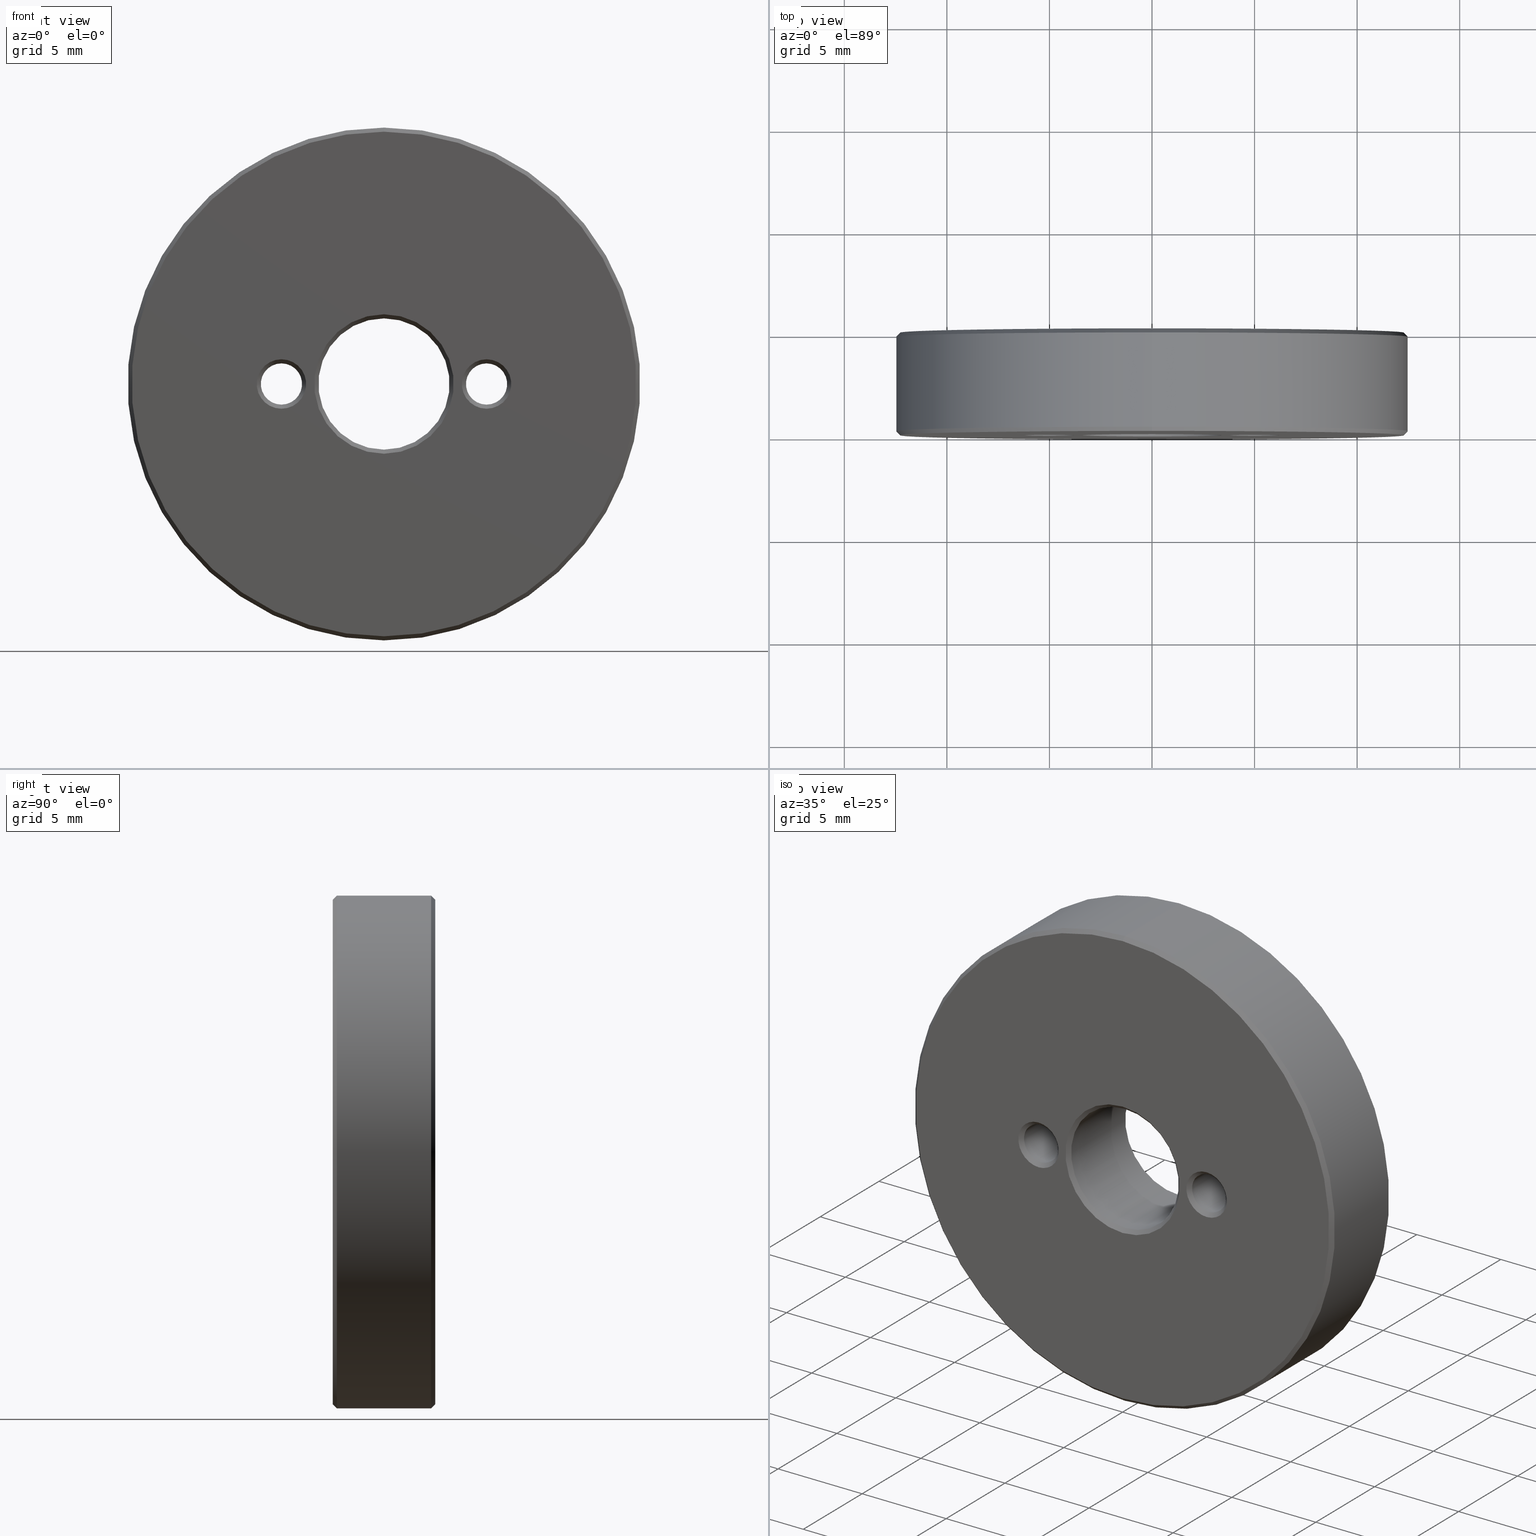
[diagram: canonical four-view strip — front | top / right | iso, engineering-drawing reading convention]
A machine part, canonical four-view strip (front | top / right | iso — engineering-drawing reading convention). The complete STEP part file that produces these views, byte-faithful:
ISO-10303-21;
HEADER;
FILE_DESCRIPTION (( 'STEP AP203' ),
    '1' );
FILE_NAME ('523803.STEP',
    '2022-12-15T01:53:30',
    ( '' ),
    ( '' ),
    'SwSTEP 2.0',
    'SolidWorks 2020',
    '' );
FILE_SCHEMA (( 'CONFIG_CONTROL_DESIGN' ));
ENDSEC;

DATA;
#1 = CARTESIAN_POINT ( 'NONE',  ( -5.000000000000000000, 5.000000000000000000, 0.000000000000000000 ) ) ;
#2 = APPROVAL_STATUS ( 'not_yet_approved' ) ;
#3 = CIRCLE ( 'NONE', #174, 12.50000000000000000 ) ;
#4 = EDGE_LOOP ( 'NONE', ( #134 ) ) ;
#5 = CC_DESIGN_DATE_AND_TIME_ASSIGNMENT ( #186, #96, ( #345 ) ) ;
#6 = AXIS2_PLACEMENT_3D ( 'NONE', #308, #360, #274 ) ;
#7 =( GEOMETRIC_REPRESENTATION_CONTEXT ( 3 ) GLOBAL_UNCERTAINTY_ASSIGNED_CONTEXT ( ( #270 ) ) GLOBAL_UNIT_ASSIGNED_CONTEXT ( ( #226, #144, #247 ) ) REPRESENTATION_CONTEXT ( 'NONE', 'WORKASPACE' ) );
#8 = EDGE_LOOP ( 'NONE', ( #231 ) ) ;
#9 = CYLINDRICAL_SURFACE ( 'NONE', #210, 3.200000000000000178 ) ;
#10 = EDGE_LOOP ( 'NONE', ( #301 ) ) ;
#11 = AXIS2_PLACEMENT_3D ( 'NONE', #185, #92, #363 ) ;
#12 = EDGE_CURVE ( 'NONE', #17, #17, #51, .T. ) ;
#13 = DIRECTION ( 'NONE',  ( 0.000000000000000000, 0.000000000000000000, 1.000000000000000000 ) ) ;
#14 = EDGE_LOOP ( 'NONE', ( #291 ) ) ;
#15 = CARTESIAN_POINT ( 'NONE',  ( -5.000000000000000000, 0.1999999999999979294, 0.000000000000000000 ) ) ;
#16 = ORIENTED_EDGE ( 'NONE', *, *, #378, .F. ) ;
#17 = VERTEX_POINT ( 'NONE', #239 ) ;
#18 = CC_DESIGN_PERSON_AND_ORGANIZATION_ASSIGNMENT ( #184, #242, ( #232 ) ) ;
#19 = CARTESIAN_POINT ( 'NONE',  ( 0.000000000000000000, 5.000000000000000000, 0.000000000000000000 ) ) ;
#20 = VERTEX_POINT ( 'NONE', #359 ) ;
#21 = CYLINDRICAL_SURFACE ( 'NONE', #142, 1.004999999999999893 ) ;
#22 = APPROVAL_STATUS ( 'not_yet_approved' ) ;
#23 = DIRECTION ( 'NONE',  ( -0.000000000000000000, -1.000000000000000000, -0.000000000000000000 ) ) ;
#24 = DIRECTION ( 'NONE',  ( 1.000000000000000000, 0.000000000000000000, 0.000000000000000000 ) ) ;
#25 = FACE_BOUND ( 'NONE', #8, .T. ) ;
#26 = DATE_AND_TIME ( #369, #36 ) ;
#27 = AXIS2_PLACEMENT_3D ( 'NONE', #112, #330, #272 ) ;
#28 = CARTESIAN_POINT ( 'NONE',  ( -5.000000000000000000, 4.799999999999993605, 1.004999999999999893 ) ) ;
#29 = APPROVAL_PERSON_ORGANIZATION ( #40, #217, #194 ) ;
#30 = FACE_BOUND ( 'NONE', #255, .T. ) ;
#31 = PERSON_AND_ORGANIZATION_ROLE ( 'classification_officer' ) ;
#32 = CARTESIAN_POINT ( 'NONE',  ( 5.000000000000000000, 5.000000000000000000, 1.204999999999996074 ) ) ;
#33 = EDGE_CURVE ( 'NONE', #20, #20, #325, .T. ) ;
#34 = EDGE_LOOP ( 'NONE', ( #287 ) ) ;
#35 = CIRCLE ( 'NONE', #222, 12.30000000000000249 ) ;
#36 = LOCAL_TIME ( 9, 53, 30.00000000000000000, #309 ) ;
#37 = AXIS2_PLACEMENT_3D ( 'NONE', #199, #108, #56 ) ;
#38 = CONICAL_SURFACE ( 'NONE', #132, 1.004999999999999893, 0.7853981633974528309 ) ;
#39 = EDGE_LOOP ( 'NONE', ( #47 ) ) ;
#40 = PERSON_AND_ORGANIZATION ( #180, #348 ) ;
#41 = ADVANCED_FACE ( 'NONE', ( #143, #201 ), #298, .T. ) ;
#42 = EDGE_LOOP ( 'NONE', ( #68 ) ) ;
#43 = FACE_BOUND ( 'NONE', #140, .T. ) ;
#44 = VERTEX_POINT ( 'NONE', #197 ) ;
#45 = CARTESIAN_POINT ( 'NONE',  ( 0.000000000000000000, 5.000000000000000000, 0.000000000000000000 ) ) ;
#46 = EDGE_CURVE ( 'NONE', #83, #83, #381, .T. ) ;
#47 = ORIENTED_EDGE ( 'NONE', *, *, #256, .T. ) ;
#48 = DIRECTION ( 'NONE',  ( 0.000000000000000000, 0.000000000000000000, 1.000000000000000000 ) ) ;
#49 = EDGE_LOOP ( 'NONE', ( #16 ) ) ;
#50 = CIRCLE ( 'NONE', #324, 3.400000000000000355 ) ;
#51 = CIRCLE ( 'NONE', #376, 1.204999999999997851 ) ;
#52 = DIRECTION ( 'NONE',  ( 0.000000000000000000, 0.000000000000000000, -1.000000000000000000 ) ) ;
#53 = EDGE_LOOP ( 'NONE', ( #139 ) ) ;
#54 = ADVANCED_FACE ( 'NONE', ( #269, #387 ), #358, .F. ) ;
#55 = DIRECTION ( 'NONE',  ( 0.000000000000000000, 0.000000000000000000, 1.000000000000000000 ) ) ;
#56 = DIRECTION ( 'NONE',  ( 0.000000000000000000, 0.000000000000000000, 1.000000000000000000 ) ) ;
#57 = CARTESIAN_POINT ( 'NONE',  ( 5.000000000000000000, 0.1999999999999979294, 1.004999999999998117 ) ) ;
#58 = AXIS2_PLACEMENT_3D ( 'NONE', #15, #114, #259 ) ;
#59 = CARTESIAN_POINT ( 'NONE',  ( 0.000000000000000000, 5.000000000000000000, 12.30000000000000249 ) ) ;
#60 = CIRCLE ( 'NONE', #27, 3.200000000000000178 ) ;
#61 = FACE_OUTER_BOUND ( 'NONE', #14, .T. ) ;
#62 = PERSON_AND_ORGANIZATION ( #180, #348 ) ;
#63 = DIRECTION ( 'NONE',  ( 0.000000000000000000, 1.000000000000000000, 0.000000000000000000 ) ) ;
#64 = AXIS2_PLACEMENT_3D ( 'NONE', #81, #110, #52 ) ;
#65 = CARTESIAN_POINT ( 'NONE',  ( 0.000000000000000000, 0.2000000000000031197, 3.200000000000000178 ) ) ;
#66 = CIRCLE ( 'NONE', #116, 1.204999999999997851 ) ;
#67 = EDGE_CURVE ( 'NONE', #78, #78, #107, .T. ) ;
#68 = ORIENTED_EDGE ( 'NONE', *, *, #290, .T. ) ;
#69 = ORIENTED_EDGE ( 'NONE', *, *, #191, .T. ) ;
#70 = CONICAL_SURFACE ( 'NONE', #396, 12.50000000000000000, 0.7853981633974526089 ) ;
#71 = APPROVAL_STATUS ( 'not_yet_approved' ) ;
#72 = CARTESIAN_POINT ( 'NONE',  ( 5.000000000000000000, 0.1999999999999979294, -1.836970198721029194E-15 ) ) ;
#73 = AXIS2_PLACEMENT_3D ( 'NONE', #111, #266, #146 ) ;
#74 = VERTEX_POINT ( 'NONE', #28 ) ;
#75 = ORIENTED_EDGE ( 'NONE', *, *, #67, .T. ) ;
#76 = DIRECTION ( 'NONE',  ( 0.000000000000000000, 1.000000000000000000, 0.000000000000000000 ) ) ;
#77 = ORIENTED_EDGE ( 'NONE', *, *, #95, .T. ) ;
#78 = VERTEX_POINT ( 'NONE', #57 ) ;
#79 = DIRECTION ( 'NONE',  ( 0.000000000000000000, 0.000000000000000000, -1.000000000000000000 ) ) ;
#80 = ADVANCED_FACE ( 'NONE', ( #319, #43, #383, #170 ), #241, .F. ) ;
#81 = CARTESIAN_POINT ( 'NONE',  ( 5.000000000000000000, 0.000000000000000000, -1.836970198721029194E-15 ) ) ;
#82 = ORIENTED_EDGE ( 'NONE', *, *, #33, .F. ) ;
#83 = VERTEX_POINT ( 'NONE', #207 ) ;
#84 = DIRECTION ( 'NONE',  ( 0.000000000000000000, 0.000000000000000000, 1.000000000000000000 ) ) ;
#85 = DIRECTION ( 'NONE',  ( 0.000000000000000000, 0.000000000000000000, 1.000000000000000000 ) ) ;
#86 = FACE_BOUND ( 'NONE', #193, .T. ) ;
#87 = CC_DESIGN_APPROVAL ( #223, ( #345 ) ) ;
#88 = CONICAL_SURFACE ( 'NONE', #136, 12.30000000000000249, 0.7853981633974526089 ) ;
#89 = ADVANCED_FACE ( 'NONE', ( #30, #281 ), #138, .F. ) ;
#90 = ADVANCED_BREP_SHAPE_REPRESENTATION ( '523803', ( #315, #278 ), #7 ) ;
#91 = SECURITY_CLASSIFICATION_LEVEL ( 'unclassified' ) ;
#92 = DIRECTION ( 'NONE',  ( 0.000000000000000000, 1.000000000000000000, 0.000000000000000000 ) ) ;
#93 = CARTESIAN_POINT ( 'NONE',  ( 0.000000000000000000, 0.000000000000000000, 0.000000000000000000 ) ) ;
#94 = VERTEX_POINT ( 'NONE', #65 ) ;
#95 = EDGE_CURVE ( 'NONE', #304, #304, #66, .T. ) ;
#96 = DATE_TIME_ROLE ( 'creation_date' ) ;
#97 = LOCAL_TIME ( 9, 53, 30.00000000000000000, #155 ) ;
#98 = DESIGN_CONTEXT ( 'detailed design', #192, 'design' ) ;
#99 = EDGE_LOOP ( 'NONE', ( #82 ) ) ;
#100 = SHAPE_DEFINITION_REPRESENTATION ( #253, #90 ) ;
#101 = AXIS2_PLACEMENT_3D ( 'NONE', #293, #76, #55 ) ;
#102 = LOCAL_TIME ( 9, 53, 30.00000000000000000, #131 ) ;
#103 = CLOSED_SHELL ( 'NONE', ( #167, #80, #41, #238, #54, #129, #220, #229, #89, #169, #195, #373, #123, #105 ) ) ;
#104 = CARTESIAN_POINT ( 'NONE',  ( 5.000000000000000000, 5.000000000000000000, -1.836970198721029194E-15 ) ) ;
#105 = ADVANCED_FACE ( 'NONE', ( #162, #277 ), #343, .F. ) ;
#106 = CC_DESIGN_APPROVAL ( #362, ( #356 ) ) ;
#107 = CIRCLE ( 'NONE', #305, 1.004999999999999893 ) ;
#108 = DIRECTION ( 'NONE',  ( 0.000000000000000000, 1.000000000000000000, 0.000000000000000000 ) ) ;
#109 = CIRCLE ( 'NONE', #332, 3.400000000000003908 ) ;
#110 = DIRECTION ( 'NONE',  ( -0.000000000000000000, -1.000000000000000000, -0.000000000000000000 ) ) ;
#111 = CARTESIAN_POINT ( 'NONE',  ( 5.000000000000000000, 4.800000000000004263, -1.836970198721029194E-15 ) ) ;
#112 = CARTESIAN_POINT ( 'NONE',  ( 0.000000000000000000, 0.2000000000000031197, 0.000000000000000000 ) ) ;
#113 = ORIENTED_EDGE ( 'NONE', *, *, #313, .T. ) ;
#114 = DIRECTION ( 'NONE',  ( -0.000000000000000000, -1.000000000000000000, -0.000000000000000000 ) ) ;
#115 = EDGE_LOOP ( 'NONE', ( #318 ) ) ;
#116 = AXIS2_PLACEMENT_3D ( 'NONE', #216, #208, #84 ) ;
#117 = DIRECTION ( 'NONE',  ( 0.000000000000000000, 0.000000000000000000, 1.000000000000000000 ) ) ;
#118 = FACE_BOUND ( 'NONE', #372, .T. ) ;
#119 = APPROVAL_DATE_TIME ( #26, #223 ) ;
#120 = CC_DESIGN_DATE_AND_TIME_ASSIGNMENT ( #370, #341, ( #212 ) ) ;
#121 = CARTESIAN_POINT ( 'NONE',  ( -5.000000000000000000, 5.000000000000000000, 1.205000000000008065 ) ) ;
#122 = FACE_OUTER_BOUND ( 'NONE', #4, .T. ) ;
#123 = ADVANCED_FACE ( 'NONE', ( #334, #364 ), #88, .T. ) ;
#124 = DIRECTION ( 'NONE',  ( 0.000000000000000000, 0.000000000000000000, -1.000000000000000000 ) ) ;
#125 = CIRCLE ( 'NONE', #215, 12.50000000000000000 ) ;
#126 = COORDINATED_UNIVERSAL_TIME_OFFSET ( 8, 0, .AHEAD. ) ;
#127 = FACE_OUTER_BOUND ( 'NONE', #350, .T. ) ;
#128 = CALENDAR_DATE ( 2022, 15, 12 ) ;
#129 = ADVANCED_FACE ( 'NONE', ( #61, #127 ), #21, .F. ) ;
#130 = CARTESIAN_POINT ( 'NONE',  ( -5.000000000000000000, 5.000000000000000000, 0.000000000000000000 ) ) ;
#131 = COORDINATED_UNIVERSAL_TIME_OFFSET ( 8, 0, .AHEAD. ) ;
#132 = AXIS2_PLACEMENT_3D ( 'NONE', #326, #200, #150 ) ;
#133 = EDGE_LOOP ( 'NONE', ( #221 ) ) ;
#134 = ORIENTED_EDGE ( 'NONE', *, *, #367, .T. ) ;
#135 = DATE_AND_TIME ( #377, #258 ) ;
#136 = AXIS2_PLACEMENT_3D ( 'NONE', #306, #153, #187 ) ;
#137 = CC_DESIGN_APPROVAL ( #217, ( #212 ) ) ;
#138 = CONICAL_SURFACE ( 'NONE', #289, 3.400000000000000355, 0.7853981633974407295 ) ;
#139 = ORIENTED_EDGE ( 'NONE', *, *, #191, .F. ) ;
#140 = EDGE_LOOP ( 'NONE', ( #77 ) ) ;
#141 = FACE_BOUND ( 'NONE', #252, .T. ) ;
#142 = AXIS2_PLACEMENT_3D ( 'NONE', #1, #157, #273 ) ;
#143 = FACE_OUTER_BOUND ( 'NONE', #385, .T. ) ;
#144 =( NAMED_UNIT ( * ) PLANE_ANGLE_UNIT ( ) SI_UNIT ( $, .RADIAN. ) );
#145 = DIRECTION ( 'NONE',  ( 0.000000000000000000, 1.000000000000000000, 0.000000000000000000 ) ) ;
#146 = DIRECTION ( 'NONE',  ( 0.000000000000000000, 0.000000000000000000, 1.000000000000000000 ) ) ;
#147 = DIRECTION ( 'NONE',  ( 0.000000000000000000, 1.000000000000000000, 0.000000000000000000 ) ) ;
#148 = CARTESIAN_POINT ( 'NONE',  ( -5.000000000000000000, 0.000000000000000000, 0.000000000000000000 ) ) ;
#149 = CARTESIAN_POINT ( 'NONE',  ( 0.000000000000000000, 0.000000000000000000, 3.400000000000000355 ) ) ;
#150 = DIRECTION ( 'NONE',  ( 0.000000000000000000, 0.000000000000000000, 1.000000000000000000 ) ) ;
#151 = DIRECTION ( 'NONE',  ( -0.000000000000000000, -1.000000000000000000, -0.000000000000000000 ) ) ;
#152 = CARTESIAN_POINT ( 'NONE',  ( 5.000000000000000000, 0.000000000000000000, 1.204999999999996074 ) ) ;
#153 = DIRECTION ( 'NONE',  ( 0.000000000000000000, -1.000000000000000000, 0.000000000000000000 ) ) ;
#154 = EDGE_CURVE ( 'NONE', #392, #392, #257, .T. ) ;
#155 = COORDINATED_UNIVERSAL_TIME_OFFSET ( 8, 0, .AHEAD. ) ;
#156 = VERTEX_POINT ( 'NONE', #149 ) ;
#157 = DIRECTION ( 'NONE',  ( -0.000000000000000000, -1.000000000000000000, -0.000000000000000000 ) ) ;
#158 = APPLICATION_PROTOCOL_DEFINITION ( 'international standard', 'config_control_design', 1994, #192 ) ;
#159 = CARTESIAN_POINT ( 'NONE',  ( -5.000000000000000000, 0.1999999999999979294, 1.004999999999999893 ) ) ;
#160 = PLANE ( 'NONE',  #11 ) ;
#161 = CIRCLE ( 'NONE', #374, 12.29999999999999893 ) ;
#162 = FACE_OUTER_BOUND ( 'NONE', #237, .T. ) ;
#163 = MECHANICAL_CONTEXT ( 'NONE', #214, 'mechanical' ) ;
#164 = VERTEX_POINT ( 'NONE', #366 ) ;
#165 = ORIENTED_EDGE ( 'NONE', *, *, #256, .F. ) ;
#166 = AXIS2_PLACEMENT_3D ( 'NONE', #331, #394, #336 ) ;
#167 = ADVANCED_FACE ( 'NONE', ( #243, #25, #122, #118 ), #160, .T. ) ;
#168 = APPROVAL_DATE_TIME ( #135, #217 ) ;
#169 = ADVANCED_FACE ( 'NONE', ( #86, #211 ), #70, .T. ) ;
#170 = FACE_OUTER_BOUND ( 'NONE', #329, .T. ) ;
#171 = CARTESIAN_POINT ( 'NONE',  ( 0.000000000000000000, 4.800000000000003375, 0.000000000000000000 ) ) ;
#172 = ORIENTED_EDGE ( 'NONE', *, *, #154, .T. ) ;
#173 = DIRECTION ( 'NONE',  ( 0.000000000000000000, 0.000000000000000000, 1.000000000000000000 ) ) ;
#174 = AXIS2_PLACEMENT_3D ( 'NONE', #349, #296, #48 ) ;
#175 = ORIENTED_EDGE ( 'NONE', *, *, #391, .F. ) ;
#176 = FACE_OUTER_BOUND ( 'NONE', #115, .T. ) ;
#177 = EDGE_LOOP ( 'NONE', ( #224 ) ) ;
#178 = CARTESIAN_POINT ( 'NONE',  ( 0.000000000000000000, 0.000000000000000000, 0.000000000000000000 ) ) ;
#179 = ORIENTED_EDGE ( 'NONE', *, *, #46, .T. ) ;
#180 = PERSON ( 'δָ��', 'δָ��', 'δָ��', ('δָ��'), ('δָ��'), ('δָ��') ) ;
#181 = FACE_BOUND ( 'NONE', #263, .T. ) ;
#182 = CONICAL_SURFACE ( 'NONE', #64, 1.204999999999997851, 0.7853981633974482790 ) ;
#183 = CARTESIAN_POINT ( 'NONE',  ( 0.000000000000000000, 0.000000000000000000, 0.000000000000000000 ) ) ;
#184 = PERSON_AND_ORGANIZATION ( #180, #348 ) ;
#185 = CARTESIAN_POINT ( 'NONE',  ( 0.000000000000000000, 5.000000000000000000, 0.000000000000000000 ) ) ;
#186 = DATE_AND_TIME ( #240, #97 ) ;
#187 = DIRECTION ( 'NONE',  ( 0.000000000000000000, 0.000000000000000000, -1.000000000000000000 ) ) ;
#188 = DIRECTION ( 'NONE',  ( 0.000000000000000000, -0.000000000000000000, 1.000000000000000000 ) ) ;
#189 = PERSON_AND_ORGANIZATION_ROLE ( 'design_supplier' ) ;
#190 = EDGE_LOOP ( 'NONE', ( #172 ) ) ;
#191 = EDGE_CURVE ( 'NONE', #74, #74, #295, .T. ) ;
#192 = APPLICATION_CONTEXT ( 'configuration controlled 3d designs of mechanical parts and assemblies' ) ;
#193 = EDGE_LOOP ( 'NONE', ( #175 ) ) ;
#194 = APPROVAL_ROLE ( '' ) ;
#195 = ADVANCED_FACE ( 'NONE', ( #218, #338 ), #38, .F. ) ;
#196 = ORIENTED_EDGE ( 'NONE', *, *, #313, .F. ) ;
#197 = CARTESIAN_POINT ( 'NONE',  ( 0.000000000000000000, 0.000000000000000000, 12.29999999999999893 ) ) ;
#198 = DIRECTION ( 'NONE',  ( -0.000000000000000000, -1.000000000000000000, -0.000000000000000000 ) ) ;
#199 = CARTESIAN_POINT ( 'NONE',  ( 0.000000000000000000, 4.799999999999997158, 0.000000000000000000 ) ) ;
#200 = DIRECTION ( 'NONE',  ( 0.000000000000000000, 1.000000000000000000, 0.000000000000000000 ) ) ;
#201 = FACE_OUTER_BOUND ( 'NONE', #39, .T. ) ;
#202 = CARTESIAN_POINT ( 'NONE',  ( 5.000000000000000000, 5.000000000000000000, -1.836970198721029194E-15 ) ) ;
#203 = APPROVAL_PERSON_ORGANIZATION ( #275, #223, #335 ) ;
#204 = ORIENTED_EDGE ( 'NONE', *, *, #391, .T. ) ;
#205 = DIRECTION ( 'NONE',  ( 0.000000000000000000, -1.000000000000000000, 0.000000000000000000 ) ) ;
#206 = ORIENTED_EDGE ( 'NONE', *, *, #46, .F. ) ;
#207 = CARTESIAN_POINT ( 'NONE',  ( 5.000000000000000000, 4.800000000000004263, 1.004999999999998117 ) ) ;
#208 = DIRECTION ( 'NONE',  ( 0.000000000000000000, 1.000000000000000000, 0.000000000000000000 ) ) ;
#209 = VERTEX_POINT ( 'NONE', #59 ) ;
#210 = AXIS2_PLACEMENT_3D ( 'NONE', #351, #384, #354 ) ;
#211 = FACE_OUTER_BOUND ( 'NONE', #379, .T. ) ;
#212 = SECURITY_CLASSIFICATION ( '', '', #91 ) ;
#213 = AXIS2_PLACEMENT_3D ( 'NONE', #393, #63, #188 ) ;
#214 = APPLICATION_CONTEXT ( 'configuration controlled 3d designs of mechanical parts and assemblies' ) ;
#215 = AXIS2_PLACEMENT_3D ( 'NONE', #171, #205, #173 ) ;
#216 = CARTESIAN_POINT ( 'NONE',  ( 5.000000000000000000, 0.000000000000000000, -1.836970198721029194E-15 ) ) ;
#217 = APPROVAL ( #71, 'δָ��' ) ;
#218 = FACE_OUTER_BOUND ( 'NONE', #352, .T. ) ;
#219 = PERSON_AND_ORGANIZATION ( #180, #348 ) ;
#220 = ADVANCED_FACE ( 'NONE', ( #141, #176 ), #236, .F. ) ;
#221 = ORIENTED_EDGE ( 'NONE', *, *, #12, .T. ) ;
#222 = AXIS2_PLACEMENT_3D ( 'NONE', #382, #147, #13 ) ;
#223 = APPROVAL ( #22, 'δָ��' ) ;
#224 = ORIENTED_EDGE ( 'NONE', *, *, #378, .T. ) ;
#225 = DIRECTION ( 'NONE',  ( 0.000000000000000000, 1.000000000000000000, 0.000000000000000000 ) ) ;
#226 =( LENGTH_UNIT ( ) NAMED_UNIT ( * ) SI_UNIT ( .MILLI., .METRE. ) );
#227 = CIRCLE ( 'NONE', #58, 1.004999999999999893 ) ;
#228 = DIRECTION ( 'NONE',  ( 0.000000000000000000, 0.000000000000000000, -1.000000000000000000 ) ) ;
#229 = ADVANCED_FACE ( 'NONE', ( #181, #268 ), #182, .F. ) ;
#230 = FACE_OUTER_BOUND ( 'NONE', #323, .T. ) ;
#231 = ORIENTED_EDGE ( 'NONE', *, *, #339, .T. ) ;
#232 = PRODUCT ( '523803', '523803', '', ( #163 ) ) ;
#233 = DIRECTION ( 'NONE',  ( 0.000000000000000000, 0.000000000000000000, 1.000000000000000000 ) ) ;
#234 = EDGE_LOOP ( 'NONE', ( #165 ) ) ;
#235 = DIRECTION ( 'NONE',  ( -0.000000000000000000, -1.000000000000000000, -0.000000000000000000 ) ) ;
#236 = CONICAL_SURFACE ( 'NONE', #347, 1.204999999999997851, 0.7853981633974482790 ) ;
#237 = EDGE_LOOP ( 'NONE', ( #196 ) ) ;
#238 = ADVANCED_FACE ( 'NONE', ( #322, #230 ), #9, .F. ) ;
#239 = CARTESIAN_POINT ( 'NONE',  ( -5.000000000000000000, 0.000000000000000000, 1.204999999999997851 ) ) ;
#240 = CALENDAR_DATE ( 2022, 15, 12 ) ;
#241 = PLANE ( 'NONE',  #213 ) ;
#242 = PERSON_AND_ORGANIZATION_ROLE ( 'design_owner' ) ;
#243 = FACE_BOUND ( 'NONE', #190, .T. ) ;
#244 = LOCAL_TIME ( 9, 53, 30.00000000000000000, #126 ) ;
#245 = APPROVAL_DATE_TIME ( #337, #362 ) ;
#246 = DIRECTION ( 'NONE',  ( -0.000000000000000000, 1.000000000000000000, -0.000000000000000000 ) ) ;
#247 =( NAMED_UNIT ( * ) SI_UNIT ( $, .STERADIAN. ) SOLID_ANGLE_UNIT ( ) );
#248 = CALENDAR_DATE ( 2022, 15, 12 ) ;
#249 = VERTEX_POINT ( 'NONE', #371 ) ;
#250 = ORIENTED_EDGE ( 'NONE', *, *, #290, .F. ) ;
#251 = COORDINATED_UNIVERSAL_TIME_OFFSET ( 8, 0, .AHEAD. ) ;
#252 = EDGE_LOOP ( 'NONE', ( #316 ) ) ;
#253 = PRODUCT_DEFINITION_SHAPE ( 'NONE', 'NONE',  #345 ) ;
#254 = ORIENTED_EDGE ( 'NONE', *, *, #67, .F. ) ;
#255 = EDGE_LOOP ( 'NONE', ( #250 ) ) ;
#256 = EDGE_CURVE ( 'NONE', #164, #164, #125, .T. ) ;
#257 = CIRCLE ( 'NONE', #297, 1.205000000000008065 ) ;
#258 = LOCAL_TIME ( 9, 53, 30.00000000000000000, #251 ) ;
#259 = DIRECTION ( 'NONE',  ( 0.000000000000000000, 0.000000000000000000, 1.000000000000000000 ) ) ;
#260 = AXIS2_PLACEMENT_3D ( 'NONE', #202, #198, #117 ) ;
#261 = DIRECTION ( 'NONE',  ( 0.000000000000000000, 0.000000000000000000, 1.000000000000000000 ) ) ;
#262 = CARTESIAN_POINT ( 'NONE',  ( 0.000000000000000000, 0.000000000000000000, 0.000000000000000000 ) ) ;
#263 = EDGE_LOOP ( 'NONE', ( #254 ) ) ;
#264 = FACE_OUTER_BOUND ( 'NONE', #10, .T. ) ;
#265 = EDGE_CURVE ( 'NONE', #307, #307, #3, .T. ) ;
#266 = DIRECTION ( 'NONE',  ( 0.000000000000000000, 1.000000000000000000, 0.000000000000000000 ) ) ;
#267 = PRODUCT_RELATED_PRODUCT_CATEGORY ( 'detail', '', ( #232 ) ) ;
#268 = FACE_OUTER_BOUND ( 'NONE', #34, .T. ) ;
#269 = FACE_OUTER_BOUND ( 'NONE', #303, .T. ) ;
#270 = UNCERTAINTY_MEASURE_WITH_UNIT (LENGTH_MEASURE( 1.000000000000000082E-05 ), #226, 'distance_accuracy_value', 'NONE');
#271 = APPLICATION_PROTOCOL_DEFINITION ( 'international standard', 'config_control_design', 1994, #214 ) ;
#272 = DIRECTION ( 'NONE',  ( 0.000000000000000000, 0.000000000000000000, 1.000000000000000000 ) ) ;
#273 = DIRECTION ( 'NONE',  ( 0.000000000000000000, 0.000000000000000000, -1.000000000000000000 ) ) ;
#274 = DIRECTION ( 'NONE',  ( 0.000000000000000000, 0.000000000000000000, 1.000000000000000000 ) ) ;
#275 = PERSON_AND_ORGANIZATION ( #180, #348 ) ;
#276 = CONICAL_SURFACE ( 'NONE', #101, 3.200000000000000178, 0.7853981633974492782 ) ;
#277 = FACE_BOUND ( 'NONE', #327, .T. ) ;
#278 = AXIS2_PLACEMENT_3D ( 'NONE', #93, #85, #24 ) ;
#279 = APPROVAL_ROLE ( '' ) ;
#280 = CARTESIAN_POINT ( 'NONE',  ( 0.000000000000000000, 0.2000000000000005107, 12.50000000000000000 ) ) ;
#281 = FACE_OUTER_BOUND ( 'NONE', #49, .T. ) ;
#282 = VERTEX_POINT ( 'NONE', #159 ) ;
#283 = CC_DESIGN_PERSON_AND_ORGANIZATION_ASSIGNMENT ( #219, #340, ( #356 ) ) ;
#284 = VERTEX_POINT ( 'NONE', #32 ) ;
#285 = ORIENTED_EDGE ( 'NONE', *, *, #154, .F. ) ;
#286 = CIRCLE ( 'NONE', #260, 1.204999999999997851 ) ;
#287 = ORIENTED_EDGE ( 'NONE', *, *, #95, .F. ) ;
#288 = CC_DESIGN_SECURITY_CLASSIFICATION ( #212, ( #356 ) ) ;
#289 = AXIS2_PLACEMENT_3D ( 'NONE', #183, #23, #124 ) ;
#290 = EDGE_CURVE ( 'NONE', #94, #94, #60, .T. ) ;
#291 = ORIENTED_EDGE ( 'NONE', *, *, #333, .T. ) ;
#292 = CC_DESIGN_PERSON_AND_ORGANIZATION_ASSIGNMENT ( #365, #189, ( #356 ) ) ;
#293 = CARTESIAN_POINT ( 'NONE',  ( 0.000000000000000000, 4.799999999999997158, 0.000000000000000000 ) ) ;
#294 = DIRECTION ( 'NONE',  ( 0.000000000000000000, 0.000000000000000000, 1.000000000000000000 ) ) ;
#295 = CIRCLE ( 'NONE', #6, 1.004999999999999893 ) ;
#296 = DIRECTION ( 'NONE',  ( -0.000000000000000000, 1.000000000000000000, -0.000000000000000000 ) ) ;
#297 = AXIS2_PLACEMENT_3D ( 'NONE', #130, #390, #310 ) ;
#298 = CYLINDRICAL_SURFACE ( 'NONE', #317, 12.50000000000000000 ) ;
#299 = CC_DESIGN_PERSON_AND_ORGANIZATION_ASSIGNMENT ( #62, #361, ( #345 ) ) ;
#300 = CARTESIAN_POINT ( 'NONE',  ( -5.000000000000000000, 0.000000000000000000, 0.000000000000000000 ) ) ;
#301 = ORIENTED_EDGE ( 'NONE', *, *, #339, .F. ) ;
#302 = DIRECTION ( 'NONE',  ( -0.000000000000000000, -1.000000000000000000, -0.000000000000000000 ) ) ;
#303 = EDGE_LOOP ( 'NONE', ( #75 ) ) ;
#304 = VERTEX_POINT ( 'NONE', #152 ) ;
#305 = AXIS2_PLACEMENT_3D ( 'NONE', #72, #321, #294 ) ;
#306 = CARTESIAN_POINT ( 'NONE',  ( 0.000000000000000000, 5.000000000000000000, 0.000000000000000000 ) ) ;
#307 = VERTEX_POINT ( 'NONE', #280 ) ;
#308 = CARTESIAN_POINT ( 'NONE',  ( -5.000000000000000000, 4.799999999999993605, 0.000000000000000000 ) ) ;
#309 = COORDINATED_UNIVERSAL_TIME_OFFSET ( 8, 0, .AHEAD. ) ;
#310 = DIRECTION ( 'NONE',  ( 0.000000000000000000, 0.000000000000000000, 1.000000000000000000 ) ) ;
#311 = AXIS2_PLACEMENT_3D ( 'NONE', #104, #346, #228 ) ;
#312 = PERSON_AND_ORGANIZATION ( #180, #348 ) ;
#313 = EDGE_CURVE ( 'NONE', #284, #284, #286, .T. ) ;
#314 = ORIENTED_EDGE ( 'NONE', *, *, #265, .F. ) ;
#315 = MANIFOLD_SOLID_BREP ( '����1', #103 ) ;
#316 = ORIENTED_EDGE ( 'NONE', *, *, #333, .F. ) ;
#317 = AXIS2_PLACEMENT_3D ( 'NONE', #19, #151, #79 ) ;
#318 = ORIENTED_EDGE ( 'NONE', *, *, #12, .F. ) ;
#319 = FACE_BOUND ( 'NONE', #133, .T. ) ;
#320 = DIRECTION ( 'NONE',  ( 0.000000000000000000, 0.000000000000000000, -1.000000000000000000 ) ) ;
#321 = DIRECTION ( 'NONE',  ( -0.000000000000000000, -1.000000000000000000, -0.000000000000000000 ) ) ;
#322 = FACE_OUTER_BOUND ( 'NONE', #42, .T. ) ;
#323 = EDGE_LOOP ( 'NONE', ( #344 ) ) ;
#324 = AXIS2_PLACEMENT_3D ( 'NONE', #178, #145, #389 ) ;
#325 = CIRCLE ( 'NONE', #37, 3.200000000000000178 ) ;
#326 = CARTESIAN_POINT ( 'NONE',  ( -5.000000000000000000, 4.799999999999993605, 0.000000000000000000 ) ) ;
#327 = EDGE_LOOP ( 'NONE', ( #206 ) ) ;
#328 = DIRECTION ( 'NONE',  ( 0.000000000000000000, 0.000000000000000000, 1.000000000000000000 ) ) ;
#329 = EDGE_LOOP ( 'NONE', ( #204 ) ) ;
#330 = DIRECTION ( 'NONE',  ( -0.000000000000000000, -1.000000000000000000, -0.000000000000000000 ) ) ;
#331 = CARTESIAN_POINT ( 'NONE',  ( 5.000000000000000000, 4.800000000000004263, -1.836970198721029194E-15 ) ) ;
#332 = AXIS2_PLACEMENT_3D ( 'NONE', #45, #357, #328 ) ;
#333 = EDGE_CURVE ( 'NONE', #282, #282, #227, .T. ) ;
#334 = FACE_OUTER_BOUND ( 'NONE', #234, .T. ) ;
#335 = APPROVAL_ROLE ( '' ) ;
#336 = DIRECTION ( 'NONE',  ( 0.000000000000000000, 0.000000000000000000, 1.000000000000000000 ) ) ;
#337 = DATE_AND_TIME ( #128, #244 ) ;
#338 = FACE_BOUND ( 'NONE', #53, .T. ) ;
#339 = EDGE_CURVE ( 'NONE', #249, #249, #109, .T. ) ;
#340 = PERSON_AND_ORGANIZATION_ROLE ( 'creator' ) ;
#341 = DATE_TIME_ROLE ( 'classification_date' ) ;
#342 = ORIENTED_EDGE ( 'NONE', *, *, #367, .F. ) ;
#343 = CONICAL_SURFACE ( 'NONE', #166, 1.004999999999999893, 0.7853981633974526089 ) ;
#344 = ORIENTED_EDGE ( 'NONE', *, *, #33, .T. ) ;
#345 = PRODUCT_DEFINITION ( 'δ֪', '', #356, #98 ) ;
#346 = DIRECTION ( 'NONE',  ( -0.000000000000000000, -1.000000000000000000, -0.000000000000000000 ) ) ;
#347 = AXIS2_PLACEMENT_3D ( 'NONE', #300, #235, #320 ) ;
#348 = ORGANIZATION ( 'δָ��', 'δָ��', '' ) ;
#349 = CARTESIAN_POINT ( 'NONE',  ( 0.000000000000000000, 0.2000000000000005107, 0.000000000000000000 ) ) ;
#350 = EDGE_LOOP ( 'NONE', ( #69 ) ) ;
#351 = CARTESIAN_POINT ( 'NONE',  ( 0.000000000000000000, 5.000000000000000000, 0.000000000000000000 ) ) ;
#352 = EDGE_LOOP ( 'NONE', ( #285 ) ) ;
#353 = CC_DESIGN_PERSON_AND_ORGANIZATION_ASSIGNMENT ( #312, #31, ( #212 ) ) ;
#354 = DIRECTION ( 'NONE',  ( 0.000000000000000000, 0.000000000000000000, -1.000000000000000000 ) ) ;
#355 = ORIENTED_EDGE ( 'NONE', *, *, #265, .T. ) ;
#356 = PRODUCT_DEFINITION_FORMATION_WITH_SPECIFIED_SOURCE ( '�κ�', '', #232, .NOT_KNOWN. ) ;
#357 = DIRECTION ( 'NONE',  ( -0.000000000000000000, -1.000000000000000000, -0.000000000000000000 ) ) ;
#358 = CYLINDRICAL_SURFACE ( 'NONE', #311, 1.004999999999999893 ) ;
#359 = CARTESIAN_POINT ( 'NONE',  ( 0.000000000000000000, 4.799999999999997158, 3.200000000000000178 ) ) ;
#360 = DIRECTION ( 'NONE',  ( 0.000000000000000000, 1.000000000000000000, 0.000000000000000000 ) ) ;
#361 = PERSON_AND_ORGANIZATION_ROLE ( 'creator' ) ;
#362 = APPROVAL ( #2, 'δָ��' ) ;
#363 = DIRECTION ( 'NONE',  ( 0.000000000000000000, -0.000000000000000000, 1.000000000000000000 ) ) ;
#364 = FACE_BOUND ( 'NONE', #375, .T. ) ;
#365 = PERSON_AND_ORGANIZATION ( #180, #348 ) ;
#366 = CARTESIAN_POINT ( 'NONE',  ( 0.000000000000000000, 4.800000000000003375, 12.50000000000000000 ) ) ;
#367 = EDGE_CURVE ( 'NONE', #209, #209, #35, .T. ) ;
#368 = DIRECTION ( 'NONE',  ( 0.000000000000000000, 0.000000000000000000, 1.000000000000000000 ) ) ;
#369 = CALENDAR_DATE ( 2022, 15, 12 ) ;
#370 = DATE_AND_TIME ( #248, #102 ) ;
#371 = CARTESIAN_POINT ( 'NONE',  ( 0.000000000000000000, 5.000000000000000000, 3.400000000000003908 ) ) ;
#372 = EDGE_LOOP ( 'NONE', ( #113 ) ) ;
#373 = ADVANCED_FACE ( 'NONE', ( #264, #386 ), #276, .F. ) ;
#374 = AXIS2_PLACEMENT_3D ( 'NONE', #262, #302, #233 ) ;
#375 = EDGE_LOOP ( 'NONE', ( #342 ) ) ;
#376 = AXIS2_PLACEMENT_3D ( 'NONE', #148, #225, #261 ) ;
#377 = CALENDAR_DATE ( 2022, 15, 12 ) ;
#378 = EDGE_CURVE ( 'NONE', #156, #156, #50, .T. ) ;
#379 = EDGE_LOOP ( 'NONE', ( #314 ) ) ;
#380 = EDGE_LOOP ( 'NONE', ( #179 ) ) ;
#381 = CIRCLE ( 'NONE', #73, 1.004999999999999893 ) ;
#382 = CARTESIAN_POINT ( 'NONE',  ( 0.000000000000000000, 5.000000000000000000, 0.000000000000000000 ) ) ;
#383 = FACE_BOUND ( 'NONE', #177, .T. ) ;
#384 = DIRECTION ( 'NONE',  ( -0.000000000000000000, -1.000000000000000000, -0.000000000000000000 ) ) ;
#385 = EDGE_LOOP ( 'NONE', ( #355 ) ) ;
#386 = FACE_BOUND ( 'NONE', #99, .T. ) ;
#387 = FACE_OUTER_BOUND ( 'NONE', #380, .T. ) ;
#388 = APPROVAL_PERSON_ORGANIZATION ( #395, #362, #279 ) ;
#389 = DIRECTION ( 'NONE',  ( 0.000000000000000000, 0.000000000000000000, 1.000000000000000000 ) ) ;
#390 = DIRECTION ( 'NONE',  ( -0.000000000000000000, -1.000000000000000000, -0.000000000000000000 ) ) ;
#391 = EDGE_CURVE ( 'NONE', #44, #44, #161, .T. ) ;
#392 = VERTEX_POINT ( 'NONE', #121 ) ;
#393 = CARTESIAN_POINT ( 'NONE',  ( 0.000000000000000000, 0.000000000000000000, 0.000000000000000000 ) ) ;
#394 = DIRECTION ( 'NONE',  ( 0.000000000000000000, 1.000000000000000000, 0.000000000000000000 ) ) ;
#395 = PERSON_AND_ORGANIZATION ( #180, #348 ) ;
#396 = AXIS2_PLACEMENT_3D ( 'NONE', #397, #246, #368 ) ;
#397 = CARTESIAN_POINT ( 'NONE',  ( 0.000000000000000000, 0.2000000000000005107, 0.000000000000000000 ) ) ;
ENDSEC;
END-ISO-10303-21;
